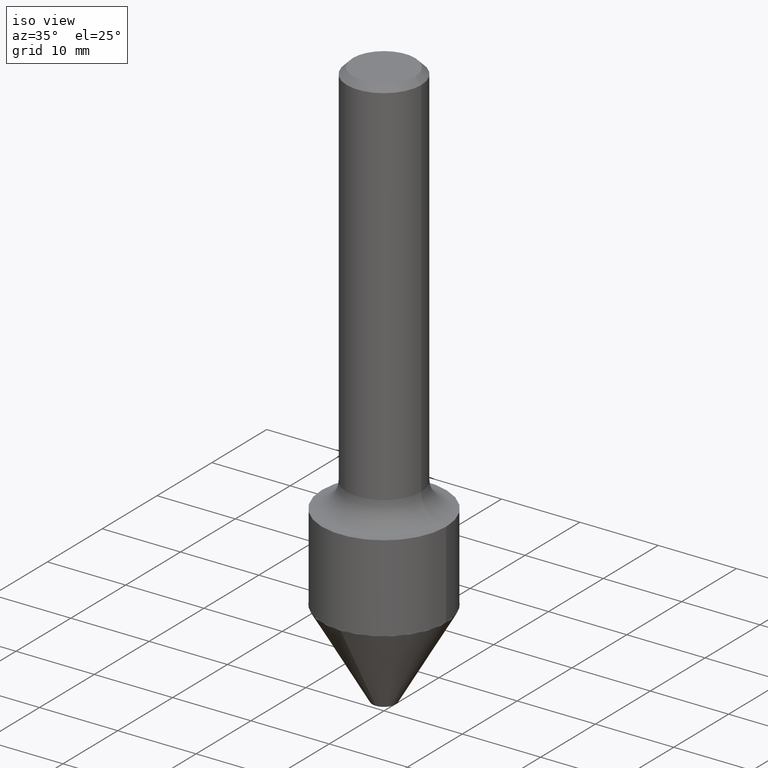
[diagram: clean part render]
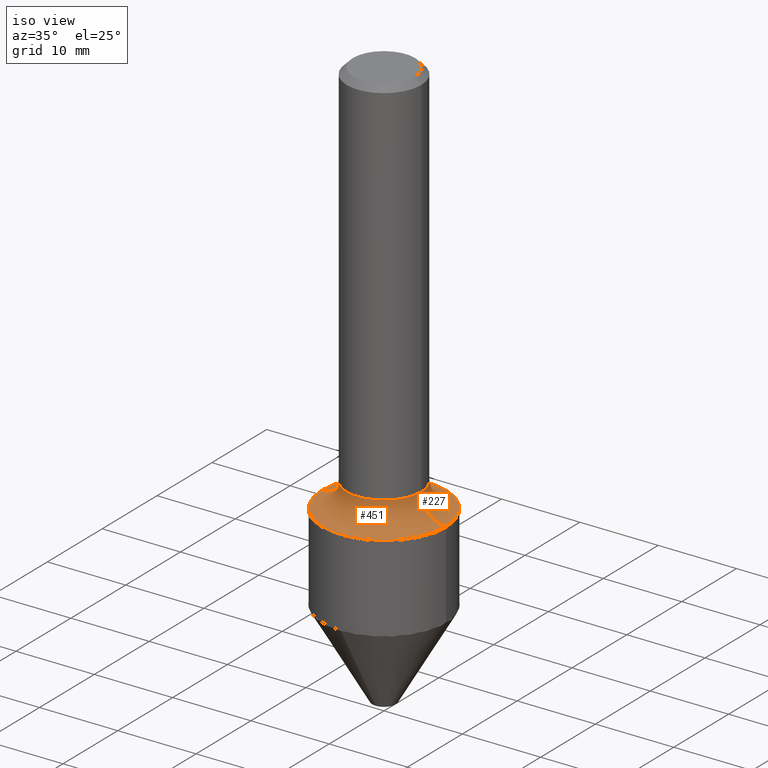
[diagram: same view with one multi-face feature highlighted, each face labeled with its STEP entity id]
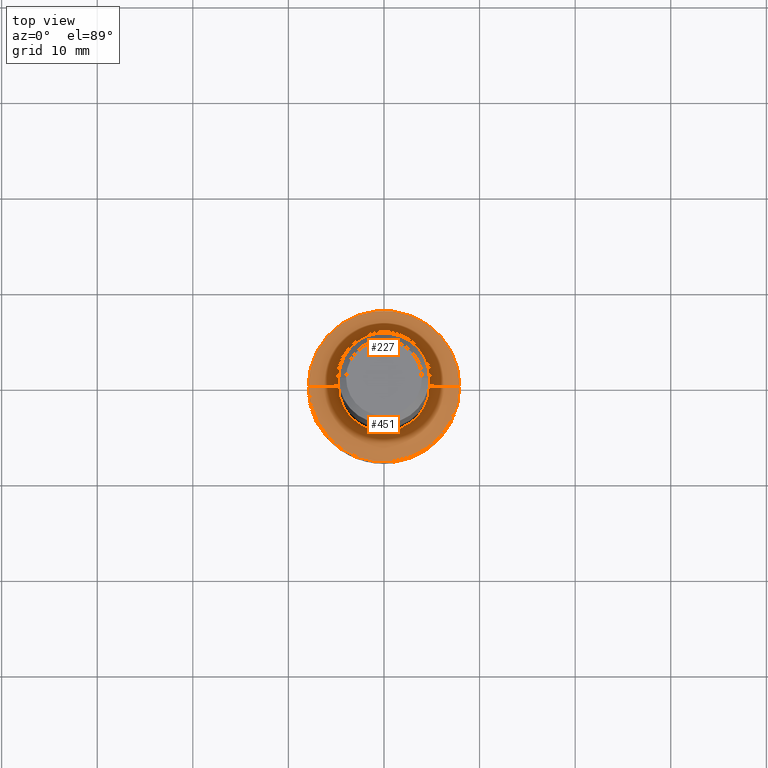
[diagram: same view with one multi-face feature highlighted, each face labeled with its STEP entity id]
A machine part, iso view. The highlighted faces form ONE feature: a constant-radius fillet chain: 2 tangent blend faces with common blend radius 3.175 mm. The faces share edges in the B-rep.
A second angle (top view) of the same feature is appended — it is thin or edge-on in the first view.
Their STEP definitions:
[1] entity #451 (Torus):
#12 = AXIS2_PLACEMENT_3D ( 'NONE', #452, #441, #250 ) ;
#39 = EDGE_CURVE ( 'NONE', #47, #362, #43, .T. ) ;
#40 = DIRECTION ( 'NONE',  ( -1.000000000000000000, 7.105427357601001859E-15, 0.000000000000000000 ) ) ;
#43 = CIRCLE ( 'NONE', #393, 0.1249999999999996947 ) ;
#47 = VERTEX_POINT ( 'NONE', #186 ) ;
#64 = DIRECTION ( 'NONE',  ( -2.445468806185136597E-29, 3.491481338843145583E-15, 1.000000000000000000 ) ) ;
#112 = EDGE_CURVE ( 'NONE', #398, #362, #343, .T. ) ;
#133 = AXIS2_PLACEMENT_3D ( 'NONE', #150, #64, #381 ) ;
#150 = CARTESIAN_POINT ( 'NONE',  ( 4.903164956401198966E-29, -7.000420084380507779E-15, -2.004999999999999893 ) ) ;
#155 = EDGE_LOOP ( 'NONE', ( #369, #176, #513, #243 ) ) ;
#160 = DIRECTION ( 'NONE',  ( 7.105427357601001859E-15, 1.000000000000000000, -3.491481338843145583E-15 ) ) ;
#163 = CARTESIAN_POINT ( 'NONE',  ( -0.3125000000000000000, -4.779974035130193909E-15, -2.004999999999999893 ) ) ;
#167 = VERTEX_POINT ( 'NONE', #388 ) ;
#176 = ORIENTED_EDGE ( 'NONE', *, *, #210, .T. ) ;
#186 = CARTESIAN_POINT ( 'NONE',  ( 0.1875000000000002498, -7.873290419091291906E-15, -1.880000000000000338 ) ) ;
#195 = CARTESIAN_POINT ( 'NONE',  ( 4.597481355628058013E-29, -6.563984917025115320E-15, -1.880000000000000338 ) ) ;
#210 = EDGE_CURVE ( 'NONE', #167, #398, #321, .T. ) ;
#243 = ORIENTED_EDGE ( 'NONE', *, *, #39, .F. ) ;
#246 = DIRECTION ( 'NONE',  ( 1.000000000000000000, -6.982962677686269077E-15, 0.000000000000000000 ) ) ;
#250 = DIRECTION ( 'NONE',  ( 1.000000000000000000, -6.982962677686265133E-15, 4.883557194083112340E-29 ) ) ;
#255 = AXIS2_PLACEMENT_3D ( 'NONE', #348, #160, #40 ) ;
#261 = EDGE_CURVE ( 'NONE', #167, #47, #306, .T. ) ;
#295 = FACE_OUTER_BOUND ( 'NONE', #155, .T. ) ;
#306 = CIRCLE ( 'NONE', #479, 0.1875000000000002498 ) ;
#308 = DIRECTION ( 'NONE',  ( -6.982962677686266711E-15, -1.000000000000000000, 3.491481338843145583E-15 ) ) ;
#321 = CIRCLE ( 'NONE', #255, 0.1249999999999996947 ) ;
#343 = CIRCLE ( 'NONE', #133, 0.3125000000000000000 ) ;
#348 = CARTESIAN_POINT ( 'NONE',  ( -0.3125000000000000000, -4.343538867774801451E-15, -1.880000000000000338 ) ) ;
#362 = VERTEX_POINT ( 'NONE', #481 ) ;
#369 = ORIENTED_EDGE ( 'NONE', *, *, #261, .F. ) ;
#381 = DIRECTION ( 'NONE',  ( 1.000000000000000000, -6.982962677686269077E-15, 0.000000000000000000 ) ) ;
#388 = CARTESIAN_POINT ( 'NONE',  ( -0.1875000000000002498, -5.005845661302559902E-15, -1.880000000000000338 ) ) ;
#393 = AXIS2_PLACEMENT_3D ( 'NONE', #463, #308, #461 ) ;
#397 = DIRECTION ( 'NONE',  ( -2.445468806185136597E-29, 3.491481338843145583E-15, 1.000000000000000000 ) ) ;
#398 = VERTEX_POINT ( 'NONE', #163 ) ;
#441 = DIRECTION ( 'NONE',  ( -2.445468806185136597E-29, 3.491481338843145583E-15, 1.000000000000000000 ) ) ;
#451 = ADVANCED_FACE ( 'NONE', ( #295 ), #505, .F. ) ;
#452 = CARTESIAN_POINT ( 'NONE',  ( 4.597481355628058013E-29, -6.563984917025115320E-15, -1.880000000000000338 ) ) ;
#461 = DIRECTION ( 'NONE',  ( 1.000000000000000000, -6.982962677686265133E-15, 0.000000000000000000 ) ) ;
#463 = CARTESIAN_POINT ( 'NONE',  ( 0.3125000000000000000, -8.746160753802073667E-15, -1.880000000000000338 ) ) ;
#479 = AXIS2_PLACEMENT_3D ( 'NONE', #195, #397, #246 ) ;
#481 = CARTESIAN_POINT ( 'NONE',  ( 0.3125000000000000000, -9.182595921157466915E-15, -2.004999999999999893 ) ) ;
#505 = TOROIDAL_SURFACE ( 'NONE', #12, 0.3125000000000000000, 0.1249999999999996947 ) ;
#513 = ORIENTED_EDGE ( 'NONE', *, *, #112, .T. ) ;
[2] entity #227 (Torus):
#5 = CIRCLE ( 'NONE', #432, 0.1875000000000002498 ) ;
#9 = ORIENTED_EDGE ( 'NONE', *, *, #39, .T. ) ;
#26 = DIRECTION ( 'NONE',  ( 1.000000000000000000, -6.982962677686269077E-15, 0.000000000000000000 ) ) ;
#39 = EDGE_CURVE ( 'NONE', #47, #362, #43, .T. ) ;
#40 = DIRECTION ( 'NONE',  ( -1.000000000000000000, 7.105427357601001859E-15, 0.000000000000000000 ) ) ;
#43 = CIRCLE ( 'NONE', #393, 0.1249999999999996947 ) ;
#47 = VERTEX_POINT ( 'NONE', #186 ) ;
#48 = AXIS2_PLACEMENT_3D ( 'NONE', #178, #340, #26 ) ;
#57 = AXIS2_PLACEMENT_3D ( 'NONE', #509, #278, #235 ) ;
#73 = DIRECTION ( 'NONE',  ( 1.000000000000000000, -6.982962677686269077E-15, 0.000000000000000000 ) ) ;
#79 = FACE_OUTER_BOUND ( 'NONE', #258, .T. ) ;
#141 = EDGE_CURVE ( 'NONE', #362, #398, #237, .T. ) ;
#160 = DIRECTION ( 'NONE',  ( 7.105427357601001859E-15, 1.000000000000000000, -3.491481338843145583E-15 ) ) ;
#163 = CARTESIAN_POINT ( 'NONE',  ( -0.3125000000000000000, -4.779974035130193909E-15, -2.004999999999999893 ) ) ;
#167 = VERTEX_POINT ( 'NONE', #388 ) ;
#178 = CARTESIAN_POINT ( 'NONE',  ( 4.903164956401198966E-29, -7.000420084380507779E-15, -2.004999999999999893 ) ) ;
#186 = CARTESIAN_POINT ( 'NONE',  ( 0.1875000000000002498, -7.873290419091291906E-15, -1.880000000000000338 ) ) ;
#210 = EDGE_CURVE ( 'NONE', #167, #398, #321, .T. ) ;
#227 = ADVANCED_FACE ( 'NONE', ( #79 ), #440, .F. ) ;
#235 = DIRECTION ( 'NONE',  ( 1.000000000000000000, -6.982962677686265133E-15, 4.883557194083112340E-29 ) ) ;
#237 = CIRCLE ( 'NONE', #48, 0.3125000000000000000 ) ;
#255 = AXIS2_PLACEMENT_3D ( 'NONE', #348, #160, #40 ) ;
#258 = EDGE_LOOP ( 'NONE', ( #333, #445, #9, #355 ) ) ;
#278 = DIRECTION ( 'NONE',  ( -2.445468806185136597E-29, 3.491481338843145583E-15, 1.000000000000000000 ) ) ;
#282 = DIRECTION ( 'NONE',  ( -2.445468806185136597E-29, 3.491481338843145583E-15, 1.000000000000000000 ) ) ;
#284 = EDGE_CURVE ( 'NONE', #47, #167, #5, .T. ) ;
#308 = DIRECTION ( 'NONE',  ( -6.982962677686266711E-15, -1.000000000000000000, 3.491481338843145583E-15 ) ) ;
#321 = CIRCLE ( 'NONE', #255, 0.1249999999999996947 ) ;
#333 = ORIENTED_EDGE ( 'NONE', *, *, #210, .F. ) ;
#340 = DIRECTION ( 'NONE',  ( -2.445468806185136597E-29, 3.491481338843145583E-15, 1.000000000000000000 ) ) ;
#348 = CARTESIAN_POINT ( 'NONE',  ( -0.3125000000000000000, -4.343538867774801451E-15, -1.880000000000000338 ) ) ;
#355 = ORIENTED_EDGE ( 'NONE', *, *, #141, .T. ) ;
#362 = VERTEX_POINT ( 'NONE', #481 ) ;
#388 = CARTESIAN_POINT ( 'NONE',  ( -0.1875000000000002498, -5.005845661302559902E-15, -1.880000000000000338 ) ) ;
#393 = AXIS2_PLACEMENT_3D ( 'NONE', #463, #308, #461 ) ;
#398 = VERTEX_POINT ( 'NONE', #163 ) ;
#432 = AXIS2_PLACEMENT_3D ( 'NONE', #470, #282, #73 ) ;
#440 = TOROIDAL_SURFACE ( 'NONE', #57, 0.3125000000000000000, 0.1249999999999996947 ) ;
#445 = ORIENTED_EDGE ( 'NONE', *, *, #284, .F. ) ;
#461 = DIRECTION ( 'NONE',  ( 1.000000000000000000, -6.982962677686265133E-15, 0.000000000000000000 ) ) ;
#463 = CARTESIAN_POINT ( 'NONE',  ( 0.3125000000000000000, -8.746160753802073667E-15, -1.880000000000000338 ) ) ;
#470 = CARTESIAN_POINT ( 'NONE',  ( 4.597481355628058013E-29, -6.563984917025115320E-15, -1.880000000000000338 ) ) ;
#481 = CARTESIAN_POINT ( 'NONE',  ( 0.3125000000000000000, -9.182595921157466915E-15, -2.004999999999999893 ) ) ;
#509 = CARTESIAN_POINT ( 'NONE',  ( 4.597481355628058013E-29, -6.563984917025115320E-15, -1.880000000000000338 ) ) ;